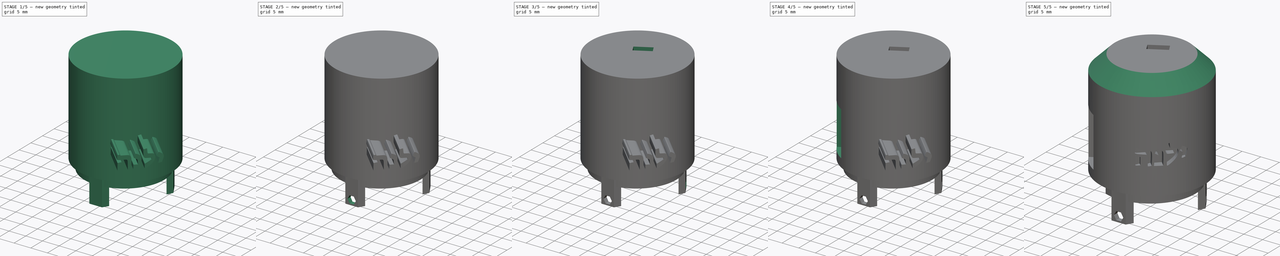
[diagram: build sequence overview — one tinted view per stage of 5, left to right]
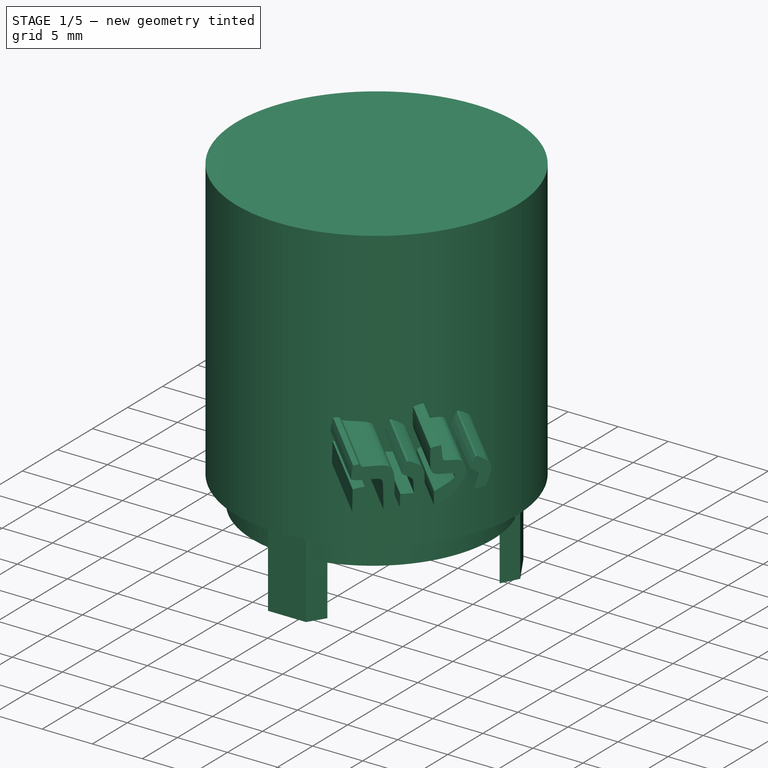
[diagram: stage 1 of 5 — iso view after this stage's code; geometry added in this stage tinted green]
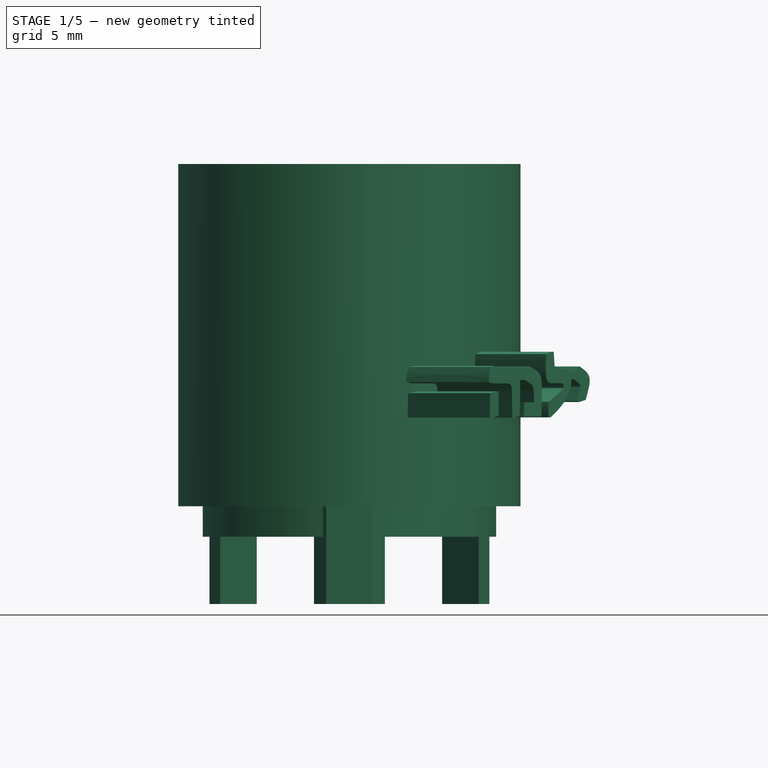
[diagram: stage 1 of 5 — front view after this stage's code; geometry added in this stage tinted green]
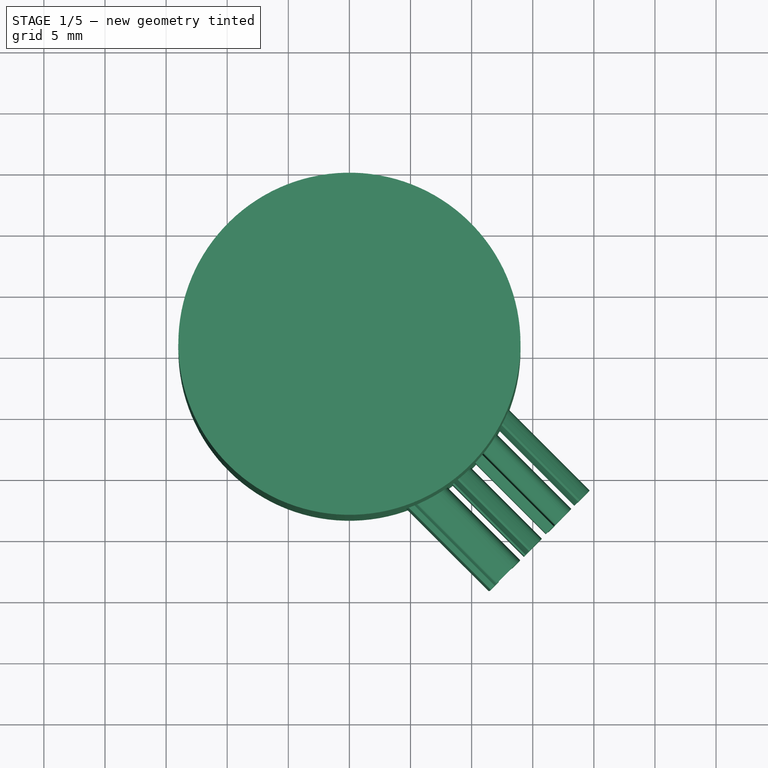
[diagram: stage 1 of 5 — top view after this stage's code; geometry added in this stage tinted green]
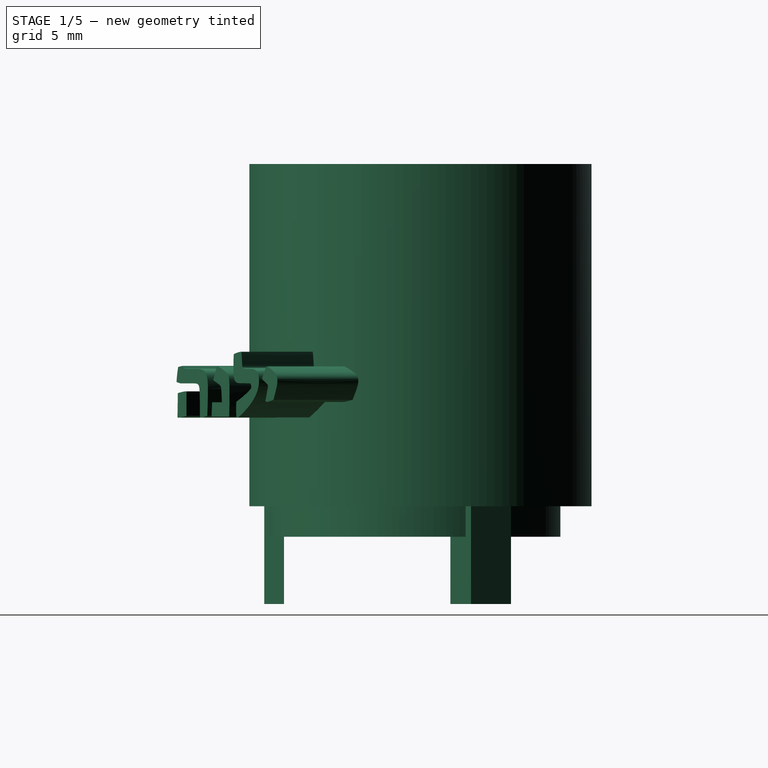
[diagram: stage 1 of 5 — right view after this stage's code; geometry added in this stage tinted green]
FCSTD DOCUMENT  (FreeCAD 0.20R29410 (Git))
Label: lid2PowerBank21700x1
License: All rights reserved
LicenseURL: http://en.wikipedia.org/wiki/All_rights_reserved
objects: Sketcher::SketchObject×20, PartDesign::Pocket×14, PartDesign::Pad×6, Part::Part2DObjectPython×1, PartDesign::Chamfer×1, PartDesign::Body×1, Part::Extrusion×1, Part::Cut×1
note: 66 computed .brp shape members not serialized (recipe doc carries the construction recipe); baked Part::Feature solids carry a one-line shape summary decoded from their .brp

FEATURE [Sketcher::SketchObject] Sketch
  FullyConstrained = true
  MapMode = 5
  Support = -> [XY_Plane]
  sketch-geometry (2):
    g0: Circle CenterX=0 CenterY=0 CenterZ=0 NormalX=0 NormalY=0 NormalZ=1 AngleXU=0 Radius=11
    g1: Circle CenterX=0 CenterY=0.55 CenterZ=0 NormalX=0 NormalY=0 NormalZ=1 AngleXU=0 Radius=14
  constraints (5):
    c: Coincident(g0,g-1)
    c: Radius(g0) = 11
    c: Radius(g1) = 14
    c: DistanceY(g-1,g1) = 0.55
    c: PointOnObject(g1,g-2)
FEATURE [PartDesign::Pad] Pad
  Direction = (0,0,1)
  Length = 25
  Length2 = 10
  Profile = -> Sketch
  ReferenceAxis = -> Sketch [N_Axis]
  Refine = true
  Type = 0
FEATURE [Sketcher::SketchObject] Sketch001
  FullyConstrained = true
  MapMode = 5
  Placement = pos=(0,0,25) rot=(0,0,1;0rad)
  Support = -> [Pad]
  sketch-geometry (1):
    g0: Circle CenterX=0 CenterY=0.55 CenterZ=0 NormalX=0 NormalY=0 NormalZ=1 AngleXU=0 Radius=14
  constraints (3):
    c: PointOnObject(g0,g-2)
    c: Radius(g0) = 14
    c: DistanceY(g-1,g0) = 0.55
FEATURE [Sketcher::SketchObject] Sketch015
  FullyConstrained = true
  MapMode = 5
  Placement = pos=(0,0,-8) rot=(1,0,0;3.14159rad)
  sketch-geometry (2):
    g0: Circle CenterX=0 CenterY=0 CenterZ=0 NormalX=0 NormalY=0 NormalZ=1 AngleXU=0 Radius=11
    g1: Circle CenterX=0 CenterY=0 CenterZ=0 NormalX=0 NormalY=0 NormalZ=1 AngleXU=0 Radius=8.2
  constraints (4):
    c: Coincident(g0,g-1)
    c: Radius(g0) = 11
    c: Coincident(g1,g0)
    c: Radius(g1) = 8.2
FEATURE [Sketcher::SketchObject] Sketch019
  FullyConstrained = true
  MapMode = 5
  Placement = pos=(0,-12.2264,0) rot=(1,0,0;1.5708rad)
  sketch-geometry (7):
    g0: LineSegment StartX=0.625 StartY=-7.58253 StartZ=0 EndX=1.25 EndY=-6.5 EndZ=0
    g1: LineSegment StartX=1.25 StartY=-6.5 StartZ=0 EndX=0.625 EndY=-5.41747 EndZ=0
    g2: LineSegment StartX=0.625 StartY=-5.41747 StartZ=0 EndX=-0.625 EndY=-5.41747 EndZ=0
    g3: LineSegment StartX=-0.625 StartY=-5.41747 StartZ=0 EndX=-1.25 EndY=-6.5 EndZ=0
    g4: LineSegment StartX=-1.25 StartY=-6.5 StartZ=0 EndX=-0.625 EndY=-7.58253 EndZ=0
    g5: LineSegment StartX=-0.625 StartY=-7.58253 StartZ=0 EndX=0.625 EndY=-7.58253 EndZ=0
    g6: Circle CenterX=0 CenterY=-6.5 CenterZ=0 NormalX=0 NormalY=0 NormalZ=1 AngleXU=0 Radius=1.25
  constraints (17):
    c: Coincident(g0,g1)
    c: Coincident(g1,g2)
    c: Coincident(g2,g3)
    c: Coincident(g3,g4)
    c: Coincident(g4,g5)
    c: Coincident(g5,g0)
    c: Equal(g0, g1-g5) x5
    c: PointOnObject(g0,g6)
    c: PointOnObject(g1,g6)
    c: PointOnObject(g2,g6)
    c: PointOnObject(g3,g6)
    c: PointOnObject(g4,g6)
    c: PointOnObject(g5,g6)
    c: PointOnObject(g6,g-2)
    c: Radius(g6) = 1.25
    c: DistanceY(g-1,g6) = -6.5
    c: Parallel(g2,g-1)
FEATURE [Sketcher::SketchObject] Sketch024
  FullyConstrained = true
  MapMode = 5
  Placement = pos=(0,0,-2.5) rot=(1,0,0;3.14159rad)
  sketch-geometry (1):
    g0: Circle CenterX=0 CenterY=-11.3 CenterZ=0 NormalX=0 NormalY=0 NormalZ=1 AngleXU=0 Radius=1
  constraints (3):
    c: PointOnObject(g0,g-2)
    c: Radius(g0) = 1
    c: DistanceY(g-1,g0) = -11.3
FEATURE [PartDesign::Pad] Pad001
  BaseFeature = -> Pad
  Direction = (0,0,1)
  Length = 3
  Length2 = 10
  Profile = -> Sketch001
  ReferenceAxis = -> Sketch001 [N_Axis]
  Refine = true
  Type = 0
FEATURE [Sketcher::SketchObject] Sketch002
  AttachmentOffset = pos=(0,0,-36) rot=(0,0,1;0rad)
  FullyConstrained = true
  MapMode = 5
  Placement = pos=(0,0,-8) rot=(0,0,1;0rad)
  Support = -> [Pad001]
  sketch-geometry (13):
    g0: LineSegment StartX=2.9 StartY=-10.6108 StartZ=0 EndX=1.9 EndY=-12.2264 EndZ=0
    g1: LineSegment StartX=1.9 StartY=-12.2264 StartZ=0 EndX=-1.9 EndY=-12.2264 EndZ=0
    g2: LineSegment StartX=-1.9 StartY=-12.2264 StartZ=0 EndX=-2.9 EndY=-10.6108 EndZ=0
    g3: LineSegment StartX=-2.9 StartY=-10.6108 StartZ=0 EndX=2.9 EndY=-10.6108 EndZ=0
    g4: LineSegment StartX=7.58602 StartY=7.96569 StartZ=0 EndX=9.4859 EndY=7.94433 EndZ=0
    g5: LineSegment StartX=9.4859 StartY=7.94433 StartZ=0 EndX=11.4494 EndY=4.69094 EndZ=0
    g6: LineSegment StartX=11.4494 StartY=4.69094 StartZ=0 EndX=10.583 EndY=3 EndZ=0
    g7: LineSegment StartX=10.583 StartY=3 StartZ=0 EndX=7.58602 EndY=7.96569 EndZ=0
    g8: LineSegment StartX=-9.4859 StartY=7.94433 StartZ=0 EndX=-7.58602 EndY=7.96569 EndZ=0
    g9: LineSegment StartX=-7.58602 StartY=7.96569 StartZ=0 EndX=-10.583 EndY=3 EndZ=0
    g10: LineSegment StartX=-10.583 StartY=3 StartZ=0 EndX=-11.4494 EndY=4.69094 EndZ=0
    g11: LineSegment StartX=-11.4494 StartY=4.69094 StartZ=0 EndX=-9.4859 EndY=7.94433 EndZ=0
    g12: Circle CenterX=0 CenterY=0 CenterZ=0 NormalX=0 NormalY=0 NormalZ=1 AngleXU=0 Radius=11
  constraints (38):
    c: Coincident(g0,g1)
    c: Coincident(g1,g2)
    c: Coincident(g2,g3)
    c: Coincident(g3,g0)
    c: Distance(g0) = 1.9
    c: Distance(g2) = 1.9
    c: Distance(g1) = 3.8
    c: Distance(g3) = 5.8
    c: Coincident(g4,g5)
    c: Coincident(g5,g6)
    c: Coincident(g6,g7)
    c: Distance(g4) = 1.9
    c: Distance(g5) = 3.8
    c: Distance(g6) = 1.9
    c: Coincident(g4,g7)
    c: Parallel(g5,g7)
    c: Distance(g7) = 5.8
    c: Coincident(g8,g9)
    c: Coincident(g9,g10)
    c: Coincident(g10,g11)
    c: Distance(g8) = 1.9
    c: Distance(g9) = 5.8
    c: Distance(g11) = 3.8
    c: Distance(g10) = 1.9
    c: Parallel(g9,g11)
    c: Coincident(g11,g8)
    c: Coincident(g12,g-1)
    c: Radius(g12) = 11
    c: PointOnObject(g4,g12)
    c: PointOnObject(g6,g12)
    c: PointOnObject(g9,g12)
    c: PointOnObject(g8,g12)
    c: PointOnObject(g2,g12)
    c: PointOnObject(g0,g12)
    c: DistanceY(g-1,g6) = 3
    c: DistanceY(g-1,g9) = 3
    c: Parallel(g1,g3)
    c: DistanceX(g-2,g2) = -2.9
FEATURE [PartDesign::Pad] Pad002
  BaseFeature = -> Pad001
  Direction = (0,0,1)
  Length = 11
  Length2 = 10
  Profile = -> Sketch002
  ReferenceAxis = -> Sketch002 [N_Axis]
  Refine = true
  Type = 0
FEATURE [Sketcher::SketchObject] Sketch003
  FullyConstrained = true
  MapMode = 5
  Placement = pos=(0,0,0) rot=(1,0,0;3.14159rad)
  Support = -> [Pad002]
  sketch-geometry (2):
    g0: Circle CenterX=0 CenterY=0 CenterZ=0 NormalX=0 NormalY=0 NormalZ=1 AngleXU=0 Radius=11
    g1: Circle CenterX=0 CenterY=0 CenterZ=0 NormalX=0 NormalY=0 NormalZ=1 AngleXU=0 Radius=12
  constraints (4):
    c: Radius(g0) = 11
    c: Coincident(g0,g-1)
    c: Coincident(g1,g0)
    c: Radius(g1) = 12
FEATURE [PartDesign::Pad] Pad003
  BaseFeature = -> Pad002
  Direction = (0,0,-1)
  Length = 2.5
  Length2 = 10
  Profile = -> Sketch003
  ReferenceAxis = -> Sketch003 [N_Axis]
  Refine = true
  Type = 0
FEATURE [PartDesign::Body] Body
  Group = -> [Sketch,Pad,Sketch001,Pad001,Sketch002,Pad002,Sketch003,Pad003,Sketch015,Pocket008,Sketch019,Pocket011,Sketch020,Pocket012,Sketch024,Pocket016,Sketch025,Pocket,Sketch026,Pocket017,Sketch027,Pad004,Sketch028,Pad005,Sketch029,Pocket018,Sketch030,Pocket019,Sketch031,Pocket021,Sketch033,Pocket022,Sketch034,Pocket023,Sketch035,Pocket024,Sketch036,Pocket025,Sketch037,Pocket026,Chamfer]
  Origin = -> Origin
  Tip = -> Chamfer
FEATURE [Part::Extrusion] Extrude
  Base = -> ShapeString
  Dir = (0.707107,-0.707107,-8e-16)
  DirMode = 2
  FaceMakerClass = Part::FaceMakerBullseye
  LengthFwd = 10
  LengthRev = 0
  Placement = pos=(4.2,6.2,-4) rot=(0,0,1;0rad)
  Solid = false
  Symmetric = false
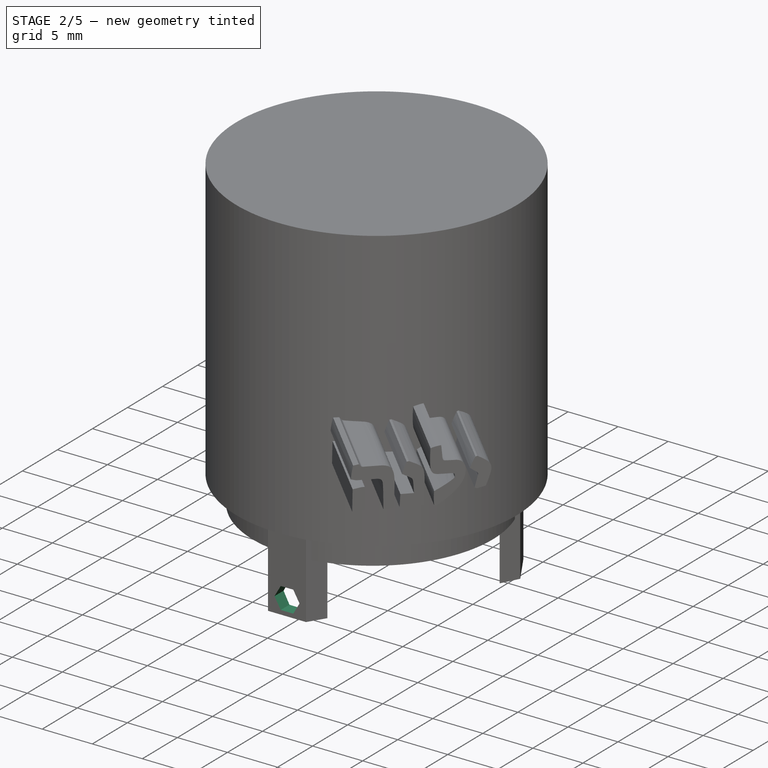
[diagram: stage 2 of 5 — iso view after this stage's code; geometry added in this stage tinted green]
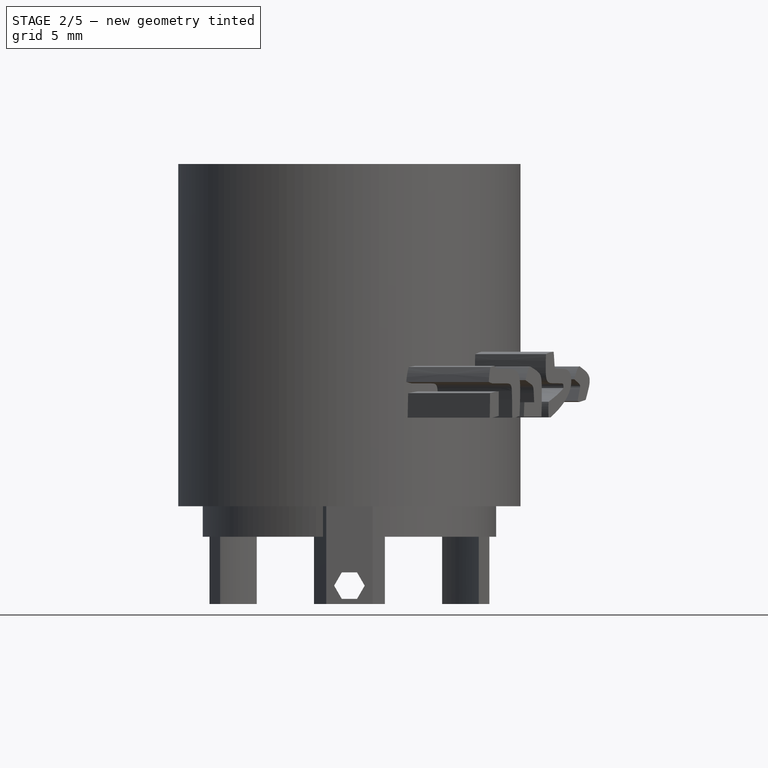
[diagram: stage 2 of 5 — front view after this stage's code; geometry added in this stage tinted green]
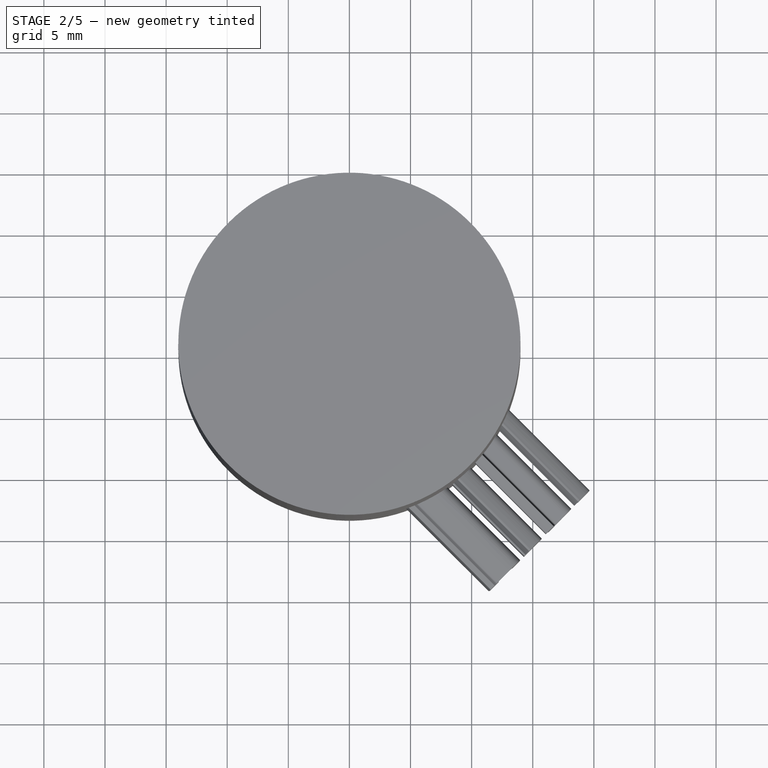
[diagram: stage 2 of 5 — top view after this stage's code; geometry added in this stage tinted green]
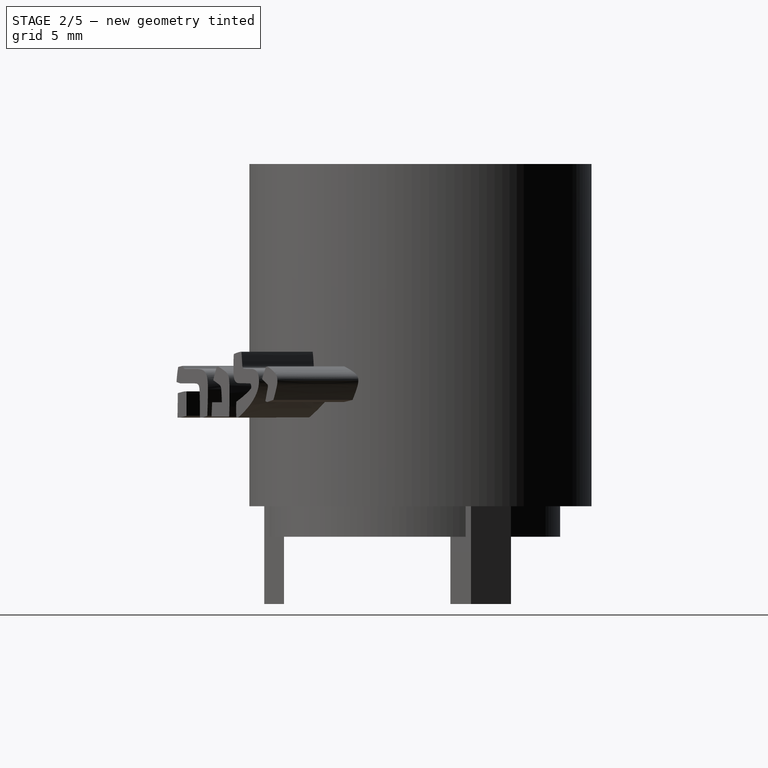
[diagram: stage 2 of 5 — right view after this stage's code; geometry added in this stage tinted green]
FEATURE [PartDesign::Pocket] Pocket008
  BaseFeature = -> Pad003
  Direction = (0,0,1)
  Length = 11
  Length2 = 5
  Profile = -> Sketch015
  ReferenceAxis = -> Sketch015 [N_Axis]
  Refine = true
  Type = 0
FEATURE [PartDesign::Pocket] Pocket011
  BaseFeature = -> Pocket008
  Direction = (0,1,-2e-16)
  Length = 2
  Length2 = 5
  Profile = -> Sketch019
  ReferenceAxis = -> Sketch019 [N_Axis]
  Refine = true
  Type = 0
FEATURE [Sketcher::SketchObject] Sketch020
  FullyConstrained = true
  MapMode = 5
  Placement = pos=(0,0,-2.5) rot=(1,0,0;3.14159rad)
  Support = -> [Pocket011]
  sketch-geometry (7):
    g0: LineSegment StartX=-0.625 StartY=-7.58253 StartZ=0 EndX=0.625 EndY=-7.58253 EndZ=0
    g1: LineSegment StartX=0.625 StartY=-7.58253 StartZ=0 EndX=1.25 EndY=-6.5 EndZ=0
    g2: LineSegment StartX=1.25 StartY=-6.5 StartZ=0 EndX=0.625 EndY=-5.41747 EndZ=0
    g3: LineSegment StartX=0.625 StartY=-5.41747 StartZ=0 EndX=-0.625 EndY=-5.41747 EndZ=0
    g4: LineSegment StartX=-0.625 StartY=-5.41747 StartZ=0 EndX=-1.25 EndY=-6.5 EndZ=0
    g5: LineSegment StartX=-1.25 StartY=-6.5 StartZ=0 EndX=-0.625 EndY=-7.58253 EndZ=0
    g6: Circle CenterX=0 CenterY=-6.5 CenterZ=0 NormalX=0 NormalY=0 NormalZ=1 AngleXU=0 Radius=1.25
  constraints (17):
    c: Coincident(g0,g1)
    c: Coincident(g1,g2)
    c: Coincident(g2,g3)
    c: Coincident(g3,g4)
    c: Coincident(g4,g5)
    c: Coincident(g5,g0)
    c: Equal(g0, g1-g5) x5
    c: PointOnObject(g0,g6)
    c: PointOnObject(g1,g6)
    c: PointOnObject(g2,g6)
    c: PointOnObject(g3,g6)
    c: PointOnObject(g4,g6)
    c: PointOnObject(g5,g6)
    c: PointOnObject(g6,g-2)
    c: Radius(g6) = 1.25
    c: DistanceY(g-1,g6) = -6.5
    c: Parallel(g3,g-1)
FEATURE [PartDesign::Pocket] Pocket012
  BaseFeature = -> Pocket011
  Direction = (0,0,1)
  Length = 3
  Length2 = 5
  Profile = -> Sketch020
  ReferenceAxis = -> Sketch020 [N_Axis]
  Refine = true
  Type = 0
FEATURE [PartDesign::Pocket] Pocket016
  BaseFeature = -> Pocket012
  Direction = (0,0,1)
  Length = 4
  Length2 = 5
  Profile = -> Sketch024
  ReferenceAxis = -> Sketch024 [N_Axis]
  Refine = true
  Type = 0
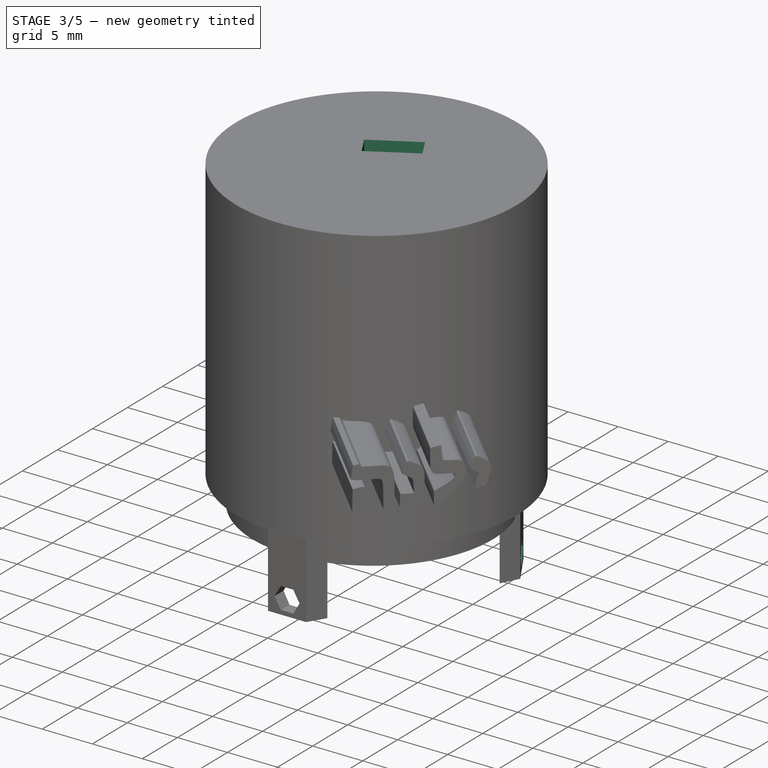
[diagram: stage 3 of 5 — iso view after this stage's code; geometry added in this stage tinted green]
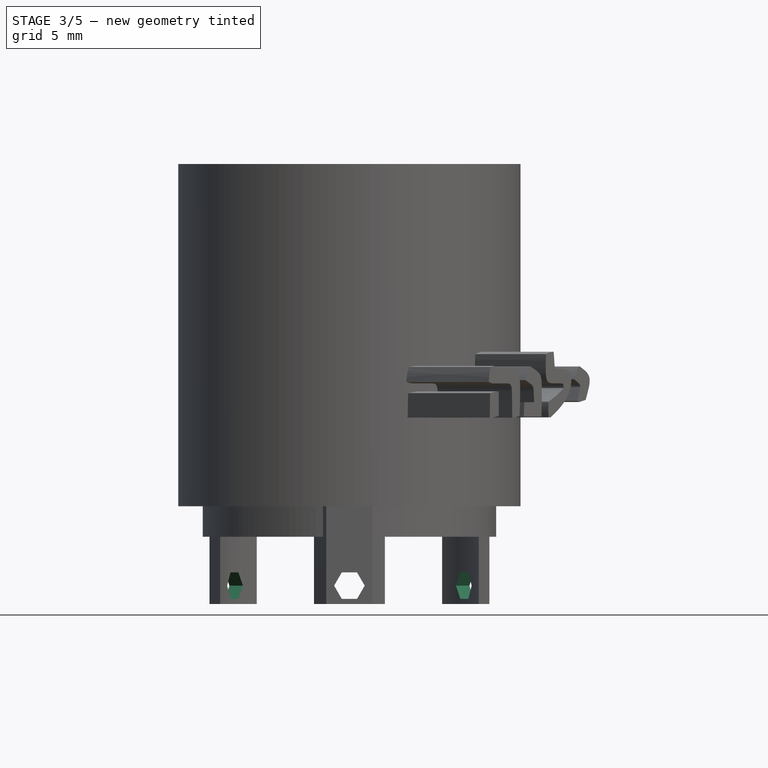
[diagram: stage 3 of 5 — front view after this stage's code; geometry added in this stage tinted green]
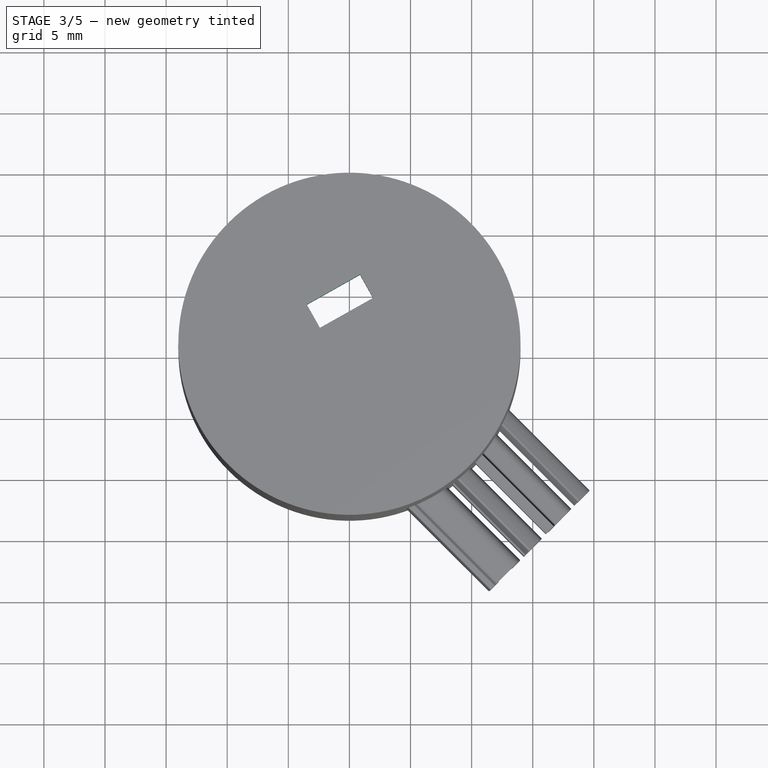
[diagram: stage 3 of 5 — top view after this stage's code; geometry added in this stage tinted green]
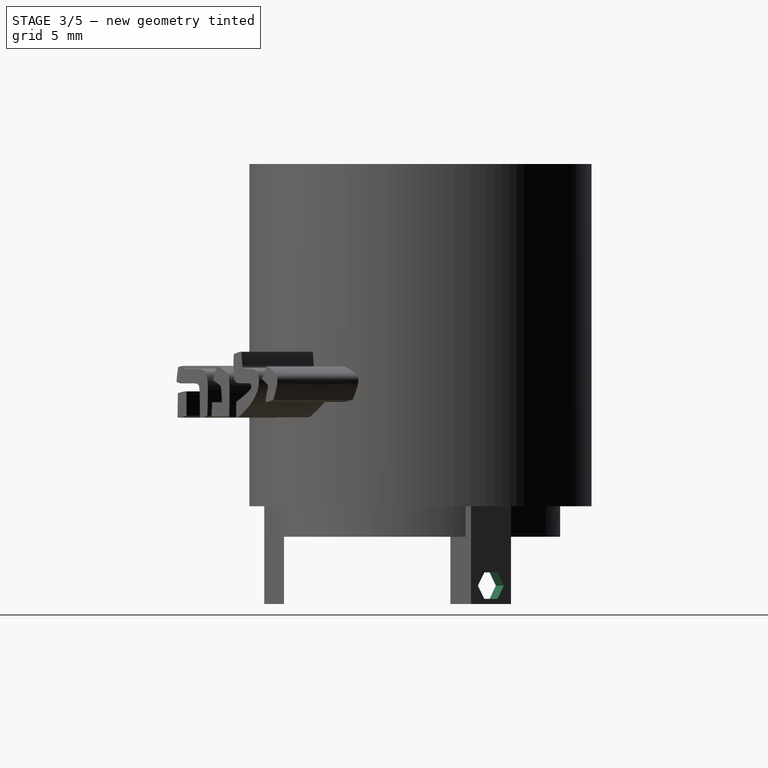
[diagram: stage 3 of 5 — right view after this stage's code; geometry added in this stage tinted green]
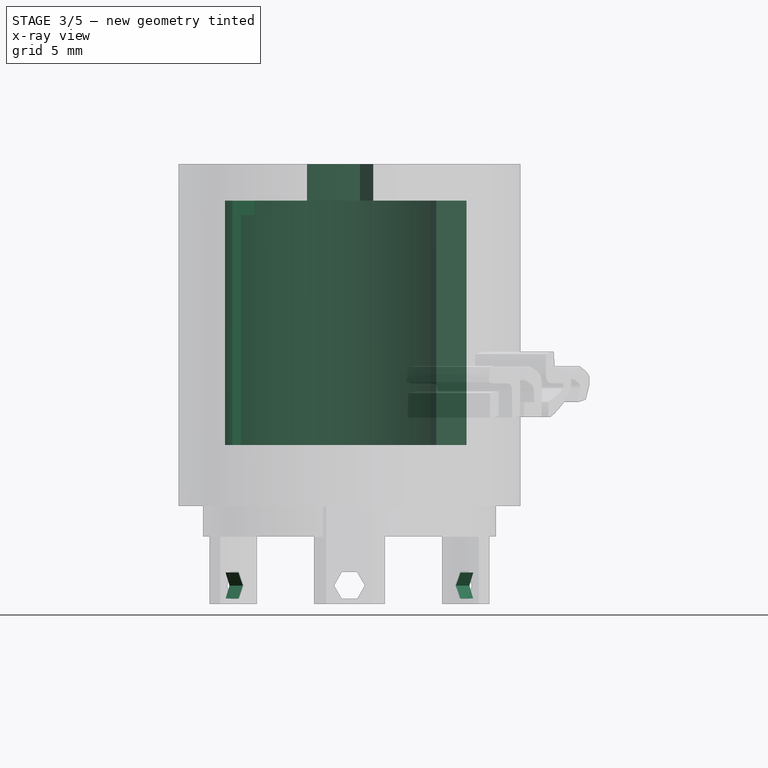
[diagram: stage 3 of 5 — x-ray composite at the front view; earlier geometry ghosted, this stage's added geometry solid]
FEATURE [Sketcher::SketchObject] Sketch025
  FullyConstrained = true
  MapMode = 5
  Placement = pos=(10.4677,6.31763,0) rot=(0.370706,0.656726,0.656726;2.43159rad)
  Support = -> [Pocket016]
  sketch-geometry (7):
    g0: LineSegment StartX=0.625 StartY=-7.58253 StartZ=0 EndX=1.25 EndY=-6.5 EndZ=0
    g1: LineSegment StartX=1.25 StartY=-6.5 StartZ=0 EndX=0.625 EndY=-5.41747 EndZ=0
    g2: LineSegment StartX=0.625 StartY=-5.41747 StartZ=0 EndX=-0.625 EndY=-5.41747 EndZ=0
    g3: LineSegment StartX=-0.625 StartY=-5.41747 StartZ=0 EndX=-1.25 EndY=-6.5 EndZ=0
    g4: LineSegment StartX=-1.25 StartY=-6.5 StartZ=0 EndX=-0.625 EndY=-7.58253 EndZ=0
    g5: LineSegment StartX=-0.625 StartY=-7.58253 StartZ=0 EndX=0.625 EndY=-7.58253 EndZ=0
    g6: Circle CenterX=0 CenterY=-6.5 CenterZ=0 NormalX=0 NormalY=0 NormalZ=1 AngleXU=0 Radius=1.25
  constraints (17):
    c: Coincident(g0,g1)
    c: Coincident(g1,g2)
    c: Coincident(g2,g3)
    c: Coincident(g3,g4)
    c: Coincident(g4,g5)
    c: Coincident(g5,g0)
    c: Equal(g0, g1-g5) x5
    c: PointOnObject(g0,g6)
    c: PointOnObject(g1,g6)
    c: PointOnObject(g2,g6)
    c: PointOnObject(g3,g6)
    c: PointOnObject(g4,g6)
    c: PointOnObject(g5,g6)
    c: Radius(g6) = 1.25
    c: PointOnObject(g6,g-2)
    c: DistanceY(g-1,g6) = -6.5
    c: Parallel(g2,g-1)
FEATURE [PartDesign::Pocket] Pocket
  BaseFeature = -> Pocket016
  Direction = (-0.856154,-0.516721,2e-16)
  Length = 1.5
  Length2 = 5
  Profile = -> Sketch025
  ReferenceAxis = -> Sketch025 [N_Axis]
  Refine = true
  Type = 0
FEATURE [Sketcher::SketchObject] Sketch026
  FullyConstrained = true
  MapMode = 5
  Placement = pos=(-10.4677,6.31763,0) rot=(-0.370706,0.656726,0.656726;3.8516rad)
  Support = -> [Pocket]
  sketch-geometry (7):
    g0: LineSegment StartX=1.25 StartY=-6.5 StartZ=0 EndX=0.625 EndY=-5.41747 EndZ=0
    g1: LineSegment StartX=0.625 StartY=-5.41747 StartZ=0 EndX=-0.625 EndY=-5.41747 EndZ=0
    g2: LineSegment StartX=-0.625 StartY=-5.41747 StartZ=0 EndX=-1.25 EndY=-6.5 EndZ=0
    g3: LineSegment StartX=-1.25 StartY=-6.5 StartZ=0 EndX=-0.625 EndY=-7.58253 EndZ=0
    g4: LineSegment StartX=-0.625 StartY=-7.58253 StartZ=0 EndX=0.625 EndY=-7.58253 EndZ=0
    g5: LineSegment StartX=0.625 StartY=-7.58253 StartZ=0 EndX=1.25 EndY=-6.5 EndZ=0
    g6: Circle CenterX=0 CenterY=-6.5 CenterZ=0 NormalX=0 NormalY=0 NormalZ=1 AngleXU=0 Radius=1.25
  constraints (17):
    c: Coincident(g0,g1)
    c: Coincident(g1,g2)
    c: Coincident(g2,g3)
    c: Coincident(g3,g4)
    c: Coincident(g4,g5)
    c: Coincident(g5,g0)
    c: Equal(g0, g1-g5) x5
    c: PointOnObject(g0,g6)
    c: PointOnObject(g1,g6)
    c: PointOnObject(g2,g6)
    c: PointOnObject(g3,g6)
    c: PointOnObject(g4,g6)
    c: PointOnObject(g5,g6)
    c: Radius(g6) = 1.25
    c: PointOnObject(g6,g-2)
    c: Parallel(g1,g-1)
    c: DistanceY(g-1,g6) = -6.5
FEATURE [PartDesign::Pocket] Pocket017
  BaseFeature = -> Pocket
  Direction = (0.856154,-0.516721,2e-16)
  Length = 1.5
  Length2 = 5
  Profile = -> Sketch026
  ReferenceAxis = -> Sketch026 [N_Axis]
  Refine = true
  Type = 0
FEATURE [Sketcher::SketchObject] Sketch027
  FullyConstrained = false
  MapMode = 5
  Placement = pos=(0,0,25) rot=(1,0,0;3.14159rad)
  Support = -> [Pocket017]
  sketch-geometry (7):
    g0: ArcOfCircle CenterX=0 CenterY=0 CenterZ=0 NormalX=0 NormalY=0 NormalZ=1 AngleXU=0 Radius=11 StartAngle=2.62928 EndAngle=5.77087
    g1: ArcOfCircle CenterX=0 CenterY=0 CenterZ=0 NormalX=0 NormalY=0 NormalZ=1 AngleXU=0 Radius=10.2 StartAngle=2.62928 EndAngle=5.67267
    g2: LineSegment StartX=7.10439 StartY=-3.99552 StartZ=0 EndX=8.89044 EndY=-5 EndZ=0
    g3: LineSegment StartX=7.10439 StartY=-3.99552 StartZ=0 EndX=6.61419 EndY=-4.86713 EndZ=0
    g4: LineSegment StartX=6.61419 StartY=-4.86713 StartZ=0 EndX=8.35742 EndY=-5.84752 EndZ=0
    g5: LineSegment StartX=8.89044 StartY=-5 StartZ=0 EndX=9.58773 EndY=-5.39216 EndZ=0
    g6: LineSegment StartX=-8.89044 StartY=5 StartZ=0 EndX=-9.58773 EndY=5.39216 EndZ=0
  constraints (18):
    c: Coincident(g0,g-1)
    c: Radius(g0) = 11
    c: Coincident(g1,g0)
    c: Radius(g1) = 10.2
    c: PointOnObject(g0,g2)
    c: Coincident(g4,g3)
    c: Coincident(g5,g2)
    c: Parallel(g6,g2)
    c: Parallel(g5,g2)
    c: Parallel(g4,g2)
    c: Distance(g3,g2) = 1
    c: DistanceY(g-1,g6) = 5
    c: Distance(g3,g4) = 2
    c: Perpendicular(g2,g3) = 4.71239
    c: Coincident(g1,g6)
    c: Coincident(g0,g5)
    c: Coincident(g0,g6)
    c: Coincident(g1,g4)
FEATURE [PartDesign::Pad] Pad004
  BaseFeature = -> Pocket017
  Direction = (0,0,-1)
  Length = 20
  Length2 = 10
  Profile = -> Sketch027
  ReferenceAxis = -> Sketch027 [N_Axis]
  Refine = true
  Type = 0
FEATURE [Sketcher::SketchObject] Sketch028
  FullyConstrained = false
  MapMode = 5
  Placement = pos=(0,0,25) rot=(1,0,0;3.14159rad)
  Support = -> [Pad004]
  sketch-geometry (5):
    g0: ArcOfCircle CenterX=0 CenterY=0 CenterZ=0 NormalX=0 NormalY=0 NormalZ=1 AngleXU=0 Radius=11 StartAngle=2.6336 EndAngle=2.72463
    g1: LineSegment StartX=-9.03079 StartY=4 StartZ=0 EndX=-5.90147 EndY=2.61393 EndZ=0
    g2: LineSegment StartX=-10.0576 StartY=4.45479 StartZ=0 EndX=-9.03079 EndY=4 EndZ=0
    g3: LineSegment StartX=-9.61095 StartY=5.35067 StartZ=0 EndX=-5.49648 EndY=3.52826 EndZ=0
    g4: LineSegment StartX=-5.90147 StartY=2.61393 StartZ=0 EndX=-5.49648 EndY=3.52826 EndZ=0
  constraints (12):
    c: Coincident(g0,g-1)
    c: Radius(g0) = 11
    c: PointOnObject(g0,g1)
    c: DistanceY(g-1,g1) = 4
    c: Coincident(g2,g1)
    c: Parallel(g2,g1)
    c: Coincident(g4,g3)
    c: Distance(g4) = 1
    c: Distance(g3) = 4.5
    c: Parallel(g3,g1)
    c: Coincident(g0,g2)
    c: Coincident(g0,g3)
FEATURE [PartDesign::Pad] Pad005
  BaseFeature = -> Pad004
  Direction = (0,0,-1)
  Length = 1.2
  Length2 = 10
  Profile = -> Sketch028
  ReferenceAxis = -> Sketch028 [N_Axis]
  Refine = true
  Type = 0
FEATURE [Sketcher::SketchObject] Sketch029
  FullyConstrained = true
  MapMode = 5
  Placement = pos=(0,0,25) rot=(1,0,0;3.14159rad)
  Support = -> [Pad005]
  sketch-geometry (7):
    g0: Circle CenterX=0 CenterY=0 CenterZ=0 NormalX=0 NormalY=0 NormalZ=1 AngleXU=0 Radius=10.2
    g1: LineSegment StartX=-8.89044 StartY=5 StartZ=0 EndX=8.89044 EndY=-5 EndZ=0
    g2: LineSegment StartX=7.17636 StartY=-7.24844 StartZ=0 EndX=-9.92146 EndY=2.36741 EndZ=0
    g3: LineSegment StartX=1.94669 StartY=-4.30726 StartZ=0 EndX=0.868258 EndY=-6.22481 EndZ=0
    g4: LineSegment StartX=-2.41137 StartY=-1.85628 StartZ=0 EndX=-3.4898 EndY=-3.77383 EndZ=0
    g5: LineSegment StartX=-3.4898 StartY=-3.77383 StartZ=0 EndX=0.868258 EndY=-6.22481 EndZ=0
    g6: LineSegment StartX=-2.41137 StartY=-1.85628 StartZ=0 EndX=1.94669 EndY=-4.30726 EndZ=0
  constraints (22):
    c: Coincident(g0,g-1)
    c: Radius(g0) = 10.2
    c: PointOnObject(g1,g0)
    c: PointOnObject(g1,g0)
    c: PointOnObject(g0,g1)
    c: DistanceY(g-1,g1) = 5
    c: PointOnObject(g2,g0)
    c: PointOnObject(g2,g0)
    c: Parallel(g2,g1)
    c: Distance(g2,g1) = 2.8
    c: PointOnObject(g3,g2)
    c: Distance(g3,g2) = 6
    c: PointOnObject(g4,g2)
    c: Distance(g4,g3) = 5
    c: Perpendicular(g2,g4)
    c: Distance(g4,g2) = 2.2
    c: Coincident(g5,g4)
    c: Coincident(g5,g3)
    c: Parallel(g5,g2)
    c: Perpendicular(g2,g3)
    c: Coincident(g6,g4)
    c: Coincident(g6,g3)
FEATURE [PartDesign::Pocket] Pocket018
  BaseFeature = -> Pad005
  Direction = (0,0,1)
  Length = 3
  Length2 = 5
  Profile = -> Sketch029
  ReferenceAxis = -> Sketch029 [N_Axis]
  Refine = true
  Type = 0
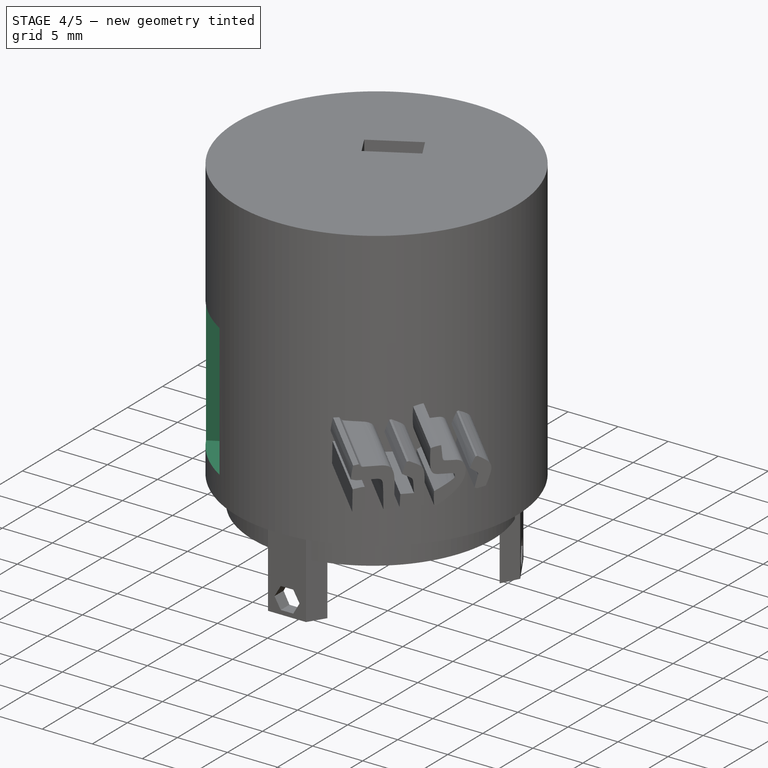
[diagram: stage 4 of 5 — iso view after this stage's code; geometry added in this stage tinted green]
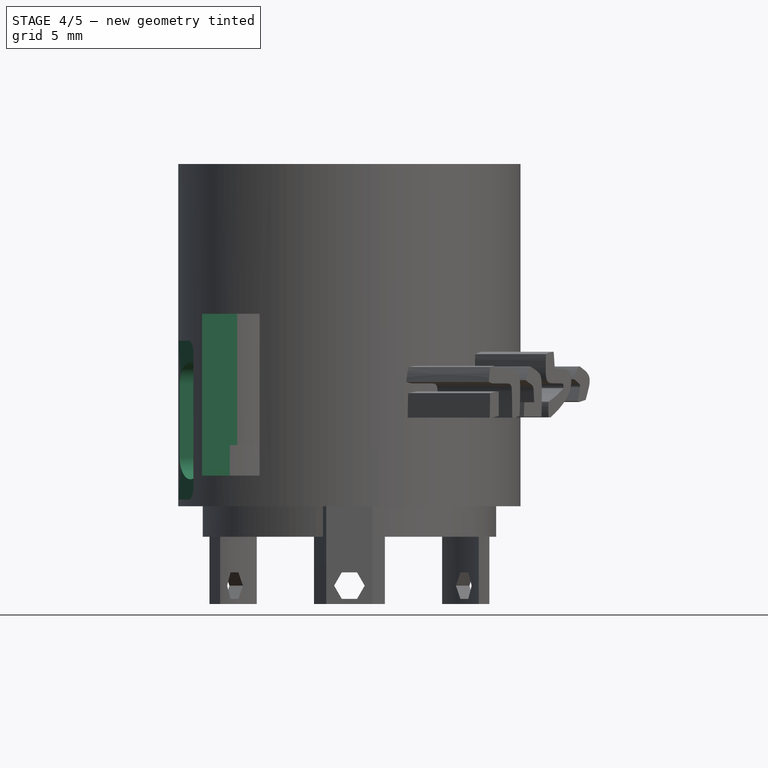
[diagram: stage 4 of 5 — front view after this stage's code; geometry added in this stage tinted green]
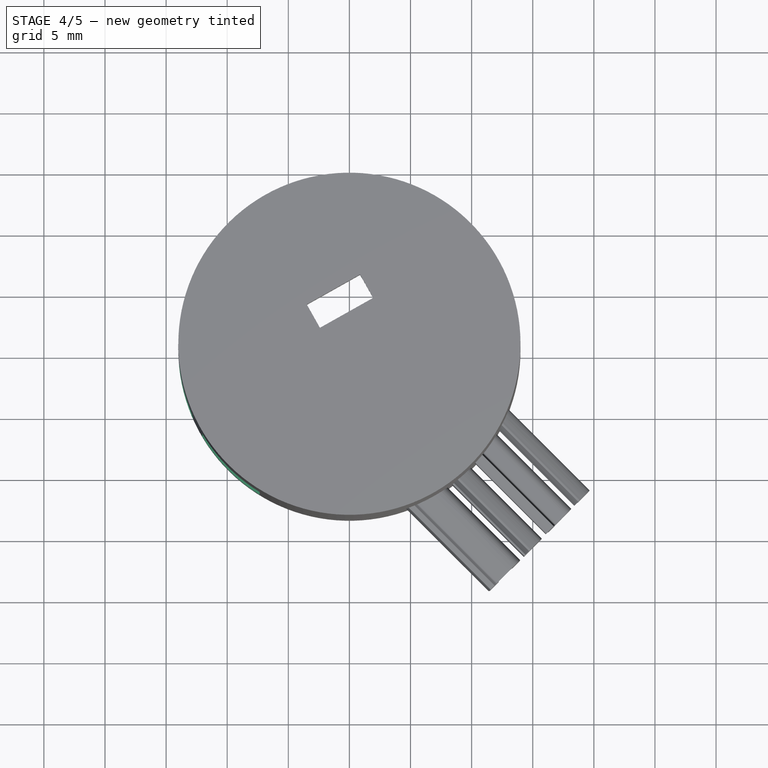
[diagram: stage 4 of 5 — top view after this stage's code; geometry added in this stage tinted green]
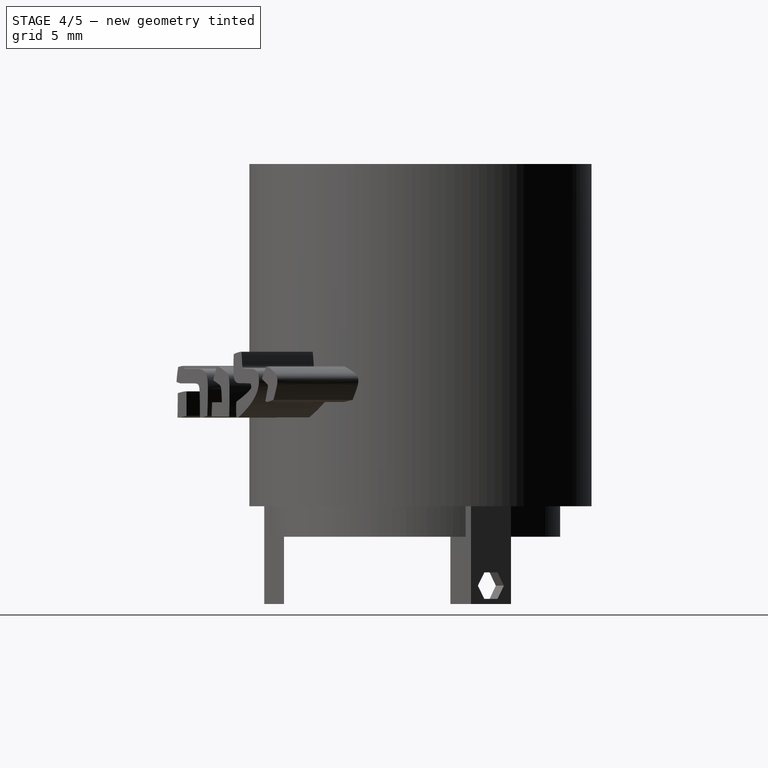
[diagram: stage 4 of 5 — right view after this stage's code; geometry added in this stage tinted green]
FEATURE [Sketcher::SketchObject] Sketch030
  FullyConstrained = true
  MapMode = 5
  Placement = pos=(0,0,25) rot=(1,0,0;3.14159rad)
  Support = -> [Pocket018]
  sketch-geometry (13):
    g0: Circle CenterX=0 CenterY=0 CenterZ=0 NormalX=0 NormalY=0 NormalZ=1 AngleXU=0 Radius=10.2
    g1: LineSegment StartX=-8.89044 StartY=5 StartZ=0 EndX=8.89044 EndY=-5 EndZ=0
    g2: LineSegment StartX=-9.91503 StartY=2.39419 StartZ=0 EndX=7.19591 EndY=-7.22903 EndZ=0
    g3: LineSegment StartX=0.977131 StartY=-6.02617 StartZ=0 EndX=1.95752 EndY=-4.28295 EndZ=0
    g4: LineSegment StartX=0.977131 StartY=-6.02617 StartZ=0 EndX=5.16087 EndY=-8.37911 EndZ=0
    g5: LineSegment StartX=5.16087 StartY=-8.37911 StartZ=0 EndX=6.14126 EndY=-6.63589 EndZ=0
    g6: LineSegment StartX=6.14126 StartY=-6.63589 StartZ=0 EndX=1.95752 EndY=-4.28295 EndZ=0
    g7: LineSegment StartX=-3.33735 StartY=-3.5997 StartZ=0 EndX=-2.35696 EndY=-1.85648 EndZ=0
    g8: LineSegment StartX=-3.33735 StartY=-3.5997 StartZ=0 EndX=-5.2549 EndY=-2.52127 EndZ=0
    g9: LineSegment StartX=-5.2549 StartY=-2.52127 StartZ=0 EndX=-4.2745 EndY=-0.778047 EndZ=0
    g10: LineSegment StartX=-4.2745 StartY=-0.778047 StartZ=0 EndX=-2.35696 EndY=-1.85648 EndZ=0
    g11: LineSegment StartX=-3.33735 StartY=-3.5997 StartZ=0 EndX=-2.35696 EndY=-1.85648 EndZ=0
    g12: LineSegment StartX=0.977131 StartY=-6.02617 StartZ=0 EndX=1.95752 EndY=-4.28295 EndZ=0
  constraints (40):
    c: Coincident(g0,g-1)
    c: Radius(g0) = 10.2
    c: PointOnObject(g1,g0)
    c: PointOnObject(g1,g0)
    c: PointOnObject(g0,g1)
    c: DistanceY(g-1,g1) = 5
    c: PointOnObject(g2,g0)
    c: PointOnObject(g2,g0)
    c: Distance(g1,g2) = 2.8
    c: Distance(g2,g1) = 2.8
    c: PointOnObject(g3,g2)
    c: Distance(g3,g2) = 6.01
    c: Perpendicular(g2,g3)
    c: Coincident(g4,g3)
    c: Coincident(g5,g4)
    c: Coincident(g6,g5)
    c: PointOnObject(g6,g3)
    c: Parallel(g4,g6)
    c: Parallel(g6,g2)
    c: Perpendicular(g6,g5)
    c: Distance(g5) = 2
    c: Distance(g6) = 4.8
    c: PointOnObject(g7,g2)
    c: Distance(g7,g3) = 4.95
    c: Perpendicular(g7,g2)
    c: Coincident(g8,g7)
    c: Coincident(g9,g8)
    c: PointOnObject(g10,g7)
    c: Coincident(g10,g9)
    c: Parallel(g10,g2)
    c: Parallel(g8,g10)
    c: Perpendicular(g10,g9)
    c: Distance(g9) = 2
    c: Distance(g10) = 2.2
    c: Coincident(g11,g8)
    c: Coincident(g11,g10)
    c: Coincident(g12,g4)
    c: Coincident(g12,g6)
    c: PointOnObject(g6,g2)
    c: PointOnObject(g10,g2)
FEATURE [PartDesign::Pocket] Pocket019
  BaseFeature = -> Pocket018
  Direction = (0,0,1)
  Length = 1.8
  Length2 = 5
  Profile = -> Sketch030
  ReferenceAxis = -> Sketch030 [N_Axis]
  Refine = true
  Type = 0
FEATURE [Sketcher::SketchObject] Sketch031
  AttachmentOffset = pos=(-1.5,0,-6) rot=(0,1,0;0.506145rad)
  FullyConstrained = false
  MapMode = 5
  Placement = pos=(-6,-1.5,-1e-15) rot=(0.384498,0.652748,0.652748;2.40745rad)
  Support = -> [YZ_Plane]
  sketch-geometry (8):
    g0: LineSegment StartX=-7.98257 StartY=15.75 StartZ=0 EndX=-1.48257 EndY=15.75 EndZ=0
    g1: LineSegment StartX=-1.48257 StartY=15.75 StartZ=0 EndX=-1.48257 EndY=2.5 EndZ=0
    g2: LineSegment StartX=-1.48257 StartY=2.5 StartZ=0 EndX=-7.98257 EndY=2.5 EndZ=0
    g3: LineSegment StartX=-7.98257 StartY=2.5 StartZ=0 EndX=-7.98257 EndY=15.75 EndZ=0
    g4: ArcOfCircle CenterX=3.16743 CenterY=10 CenterZ=0 NormalX=0 NormalY=0 NormalZ=1 AngleXU=0 Radius=1.8 StartAngle=1.15904e-11 EndAngle=3.14159
    g5: ArcOfCircle CenterX=3.16743 CenterY=4 CenterZ=0 NormalX=0 NormalY=0 NormalZ=1 AngleXU=0 Radius=1.8 StartAngle=3.14159 EndAngle=6.28319
    g6: LineSegment StartX=1.36743 StartY=10 StartZ=0 EndX=1.36743 EndY=4 EndZ=0
    g7: LineSegment StartX=4.96743 StartY=4 StartZ=0 EndX=4.96743 EndY=10 EndZ=0
  constraints (21):
    c: Coincident(g0,g1)
    c: Coincident(g1,g2)
    c: Coincident(g2,g3)
    c: Coincident(g3,g0)
    c: Horizontal(g0)
    c: Horizontal(g2)
    c: Vertical(g1)
    c: Vertical(g3)
    c: Distance(g0) = 6.5
    c: Distance(g1) = 13.25
    c: Tangent(g4,g6) = -1.5708
    c: Tangent(g6,g5) = -1.5708
    c: Tangent(g5,g7) = -1.5708
    c: Tangent(g7,g4) = -1.5708
    c: Equal(g4,g5)
    c: Vertical(g6)
    c: Radius(g4) = 1.8
    c: Distance(g7) = 6
    c: Distance(g4,g1) = 2.85
    c: DistanceY(g-1,g2) = 2.5
    c: DistanceY(g-1,g5) = 4
FEATURE [Sketcher::SketchObject] Sketch033
  AttachmentOffset = pos=(-2.5,0,-8) rot=(0,1,0;0.558505rad)
  FullyConstrained = true
  MapMode = 5
  Placement = pos=(-8,-2.5,-1.2e-15) rot=(0.364925,0.658342,0.658342;2.44177rad)
  Support = -> [YZ_Plane]
  sketch-geometry (4):
    g0: LineSegment StartX=-8.5 StartY=16.25 StartZ=0 EndX=-1 EndY=16.25 EndZ=0
    g1: LineSegment StartX=-1 StartY=16.25 StartZ=0 EndX=-1 EndY=2 EndZ=0
    g2: LineSegment StartX=-1 StartY=2 StartZ=0 EndX=-8.5 EndY=2 EndZ=0
    g3: LineSegment StartX=-8.5 StartY=2 StartZ=0 EndX=-8.5 EndY=16.25 EndZ=0
  constraints (12):
    c: Coincident(g0,g1)
    c: Coincident(g1,g2)
    c: Coincident(g2,g3)
    c: Coincident(g3,g0)
    c: Horizontal(g0)
    c: Horizontal(g2)
    c: Vertical(g1)
    c: Vertical(g3)
    c: Distance(g0) = 7.5
    c: Distance(g1) = 14.25
    c: DistanceY(g-1,g2) = 2
    c: DistanceX(g-2,g1) = -1
FEATURE [Sketcher::SketchObject] Sketch034
  AttachmentOffset = pos=(-4.5,0,-11.5) rot=(0,1,0;0.506145rad)
  FullyConstrained = false
  MapMode = 5
  Placement = pos=(-11.5,-4.5,-1.6e-15) rot=(0.384498,0.652748,0.652748;2.40745rad)
  Support = -> [YZ_Plane]
  sketch-geometry (10):
    g0: ArcOfCircle CenterX=1 CenterY=12.5487 CenterZ=0 NormalX=0 NormalY=0 NormalZ=1 AngleXU=0 Radius=1 StartAngle=1.5708 EndAngle=3.14159
    g1: LineSegment StartX=1 StartY=13.5487 StartZ=0 EndX=5 EndY=13.5487 EndZ=0
    g2: ArcOfCircle CenterX=5 CenterY=12.5487 CenterZ=0 NormalX=0 NormalY=0 NormalZ=1 AngleXU=0 Radius=1 StartAngle=-9e-16 EndAngle=1.5708
    g3: LineSegment StartX=6 StartY=12.5487 StartZ=0 EndX=6 EndY=1.54865 EndZ=0
    g4: ArcOfCircle CenterX=5 CenterY=1.54865 CenterZ=0 NormalX=0 NormalY=0 NormalZ=1 AngleXU=0 Radius=1 StartAngle=4.71239 EndAngle=6.28319
    g5: LineSegment StartX=5 StartY=0.548653 StartZ=0 EndX=1 EndY=0.548653 EndZ=0
    g6: ArcOfCircle CenterX=1 CenterY=1.54865 CenterZ=0 NormalX=0 NormalY=0 NormalZ=1 AngleXU=0 Radius=1 StartAngle=3.14159 EndAngle=4.71239
    g7: LineSegment StartX=0 StartY=1.54865 StartZ=0 EndX=0 EndY=12.5487 EndZ=0
    g8: GeomPoint X=0 Y=13.5487 Z=0
    g9: GeomPoint X=6 Y=0.548653 Z=0
  constraints (23):
    c: Tangent(g0,g1) = 1.5708
    c: Tangent(g1,g2) = 1.5708
    c: Tangent(g2,g3) = 1.5708
    c: Tangent(g3,g4) = 1.5708
    c: Tangent(g4,g5) = 1.5708
    c: Tangent(g5,g6) = 1.5708
    c: Tangent(g6,g7) = 1.5708
    c: Tangent(g7,g0) = 1.5708
    c: Horizontal(g1)
    c: Horizontal(g5)
    c: Vertical(g3)
    c: Vertical(g7)
    c: Equal(g0,g2)
    c: Equal(g2,g4)
    c: Equal(g4,g6)
    c: PointOnObject(g8,g1)
    c: PointOnObject(g8,g7)
    c: PointOnObject(g9,g3)
    c: PointOnObject(g9,g5)
    c: Distance(g3) = 11
    c: Distance(g1) = 4
    c: Radius(g2) = 1
    c: PointOnObject(g0,g-2)
FEATURE [PartDesign::Pocket] Pocket021
  BaseFeature = -> Pocket019
  Direction = (-0.87462,-0.48481,-2e-16)
  Length = 9
  Length2 = 5
  Profile = -> Sketch031
  ReferenceAxis = -> Sketch031 [N_Axis]
  Refine = true
  Type = 0
FEATURE [PartDesign::Pocket] Pocket022
  BaseFeature = -> Pocket021
  Direction = (-0.848048,-0.529919,0)
  Length = 3
  Length2 = 5
  Profile = -> Sketch033
  ReferenceAxis = -> Sketch033 [N_Axis]
  Refine = true
  Type = 0
FEATURE [PartDesign::Pocket] Pocket023
  BaseFeature = -> Pocket022
  Direction = (-0.87462,-0.48481,-2e-16)
  Length = 5
  Length2 = 5
  Profile = -> Sketch034
  ReferenceAxis = -> Sketch034 [N_Axis]
  Refine = true
  Type = 0
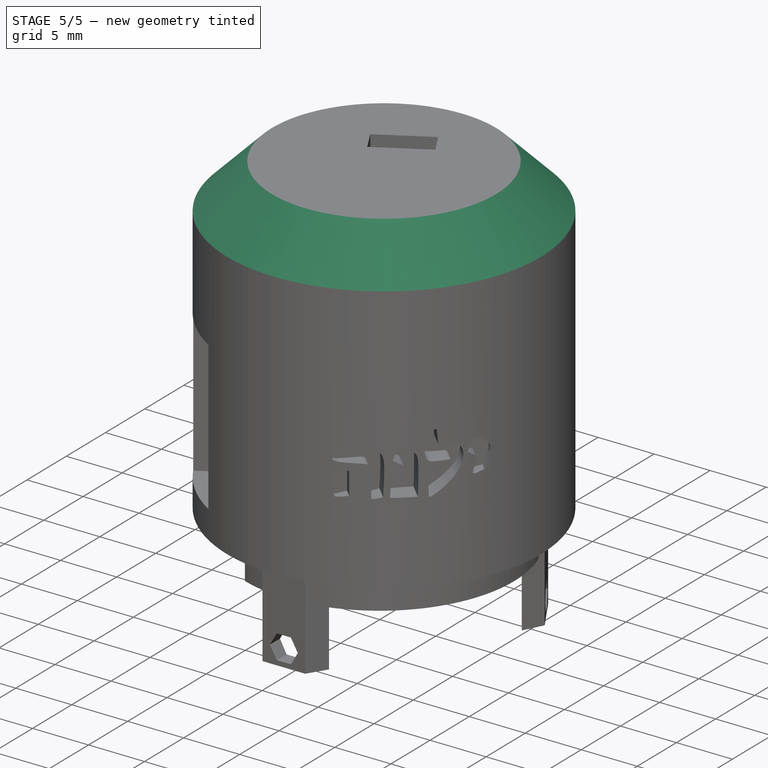
[diagram: stage 5 of 5 — iso view after this stage's code; geometry added in this stage tinted green]
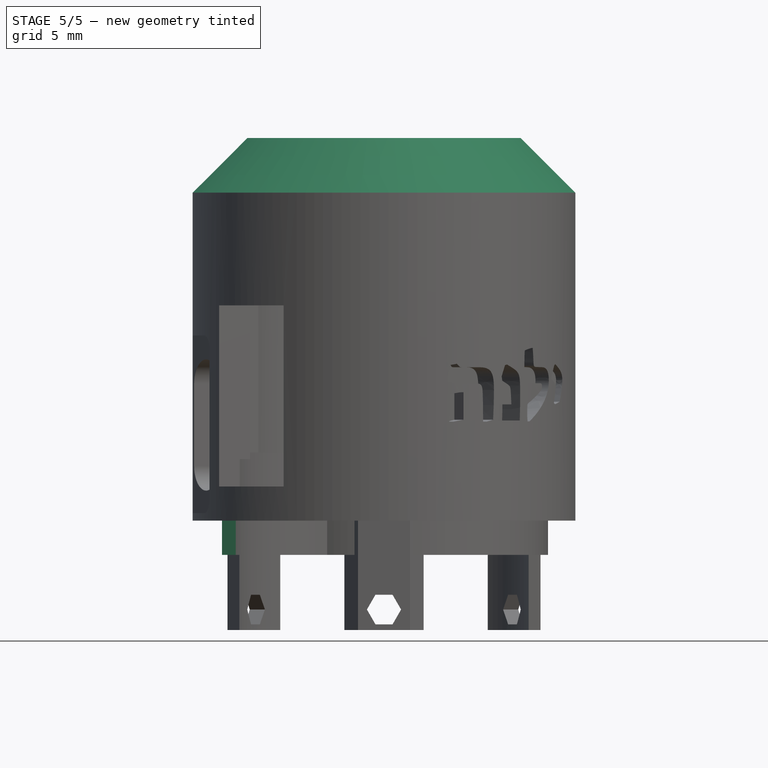
[diagram: stage 5 of 5 — front view after this stage's code; geometry added in this stage tinted green]
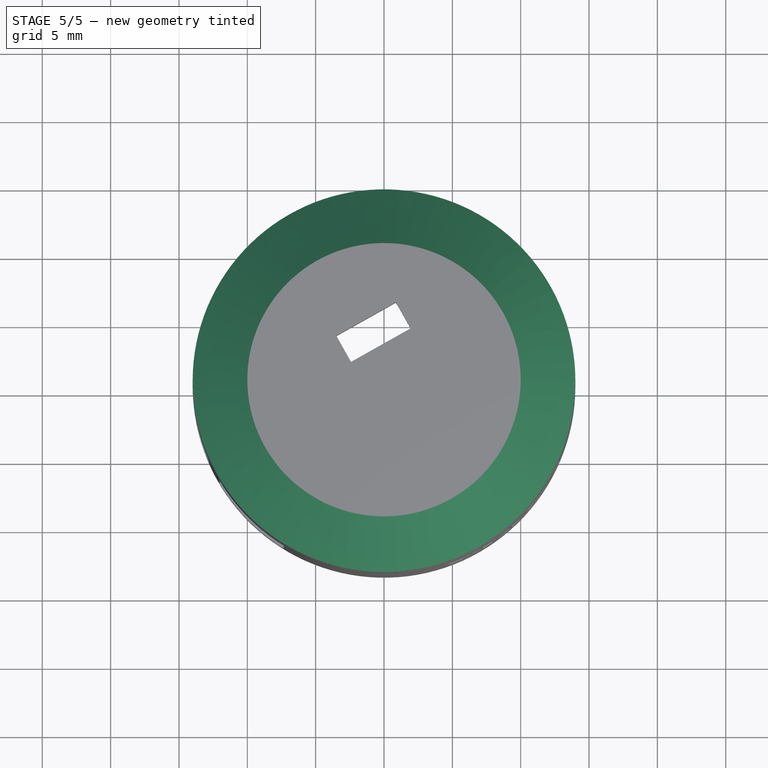
[diagram: stage 5 of 5 — top view after this stage's code; geometry added in this stage tinted green]
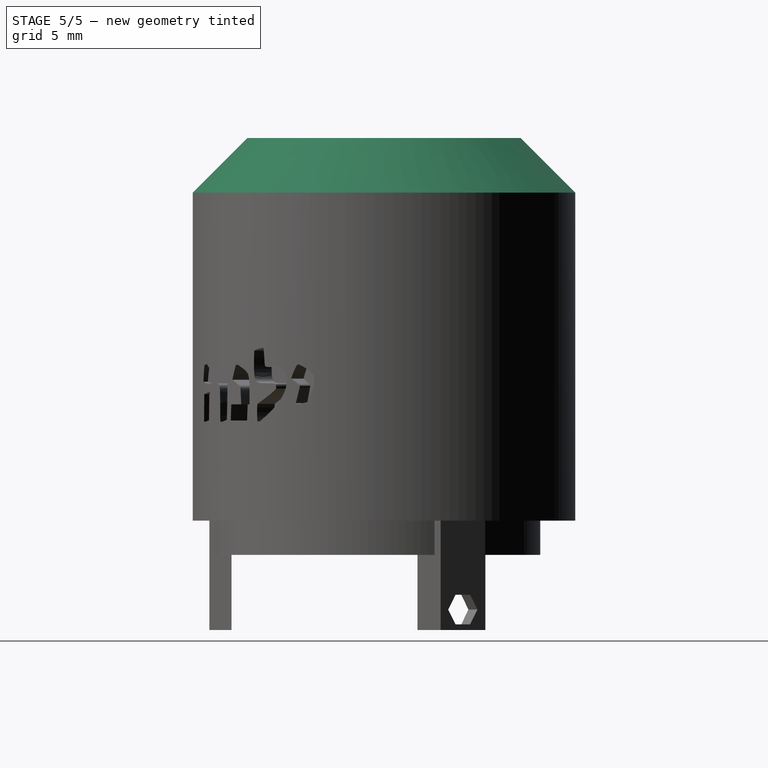
[diagram: stage 5 of 5 — right view after this stage's code; geometry added in this stage tinted green]
FEATURE [Part::Part2DObjectPython] ShapeString  # Draft 2D object (typed FeaturePython)
  FontFile = <userpath>/Desktop/FreeCAD/fonts/Suez One.ttf
  MakeFace = true
  Placement = pos=(-0.091,-18.76,11.33) rot=(0.862856,0.357407,0.357407;1.71777rad)
  Size = 3
  String = הנלי
  Tracking = 0
FEATURE [Sketcher::SketchObject] Sketch035
  FullyConstrained = true
  MapMode = 5
  Placement = pos=(0,0,25) rot=(1,0,0;3.14159rad)
  Support = -> [Pocket023]
  sketch-geometry (4):
    g0: ArcOfCircle CenterX=0 CenterY=0 CenterZ=0 NormalX=0 NormalY=0 NormalZ=1 AngleXU=0 Radius=10.2 StartAngle=2.72472 EndAngle=2.92111
    g1: LineSegment StartX=-9.32647 StartY=4.13 StartZ=0 EndX=8.35569 EndY=-5.85 EndZ=0
    g2: LineSegment StartX=-9.95309 StartY=2.2307 StartZ=0 EndX=7.05353 EndY=-7.36802 EndZ=0
    g3: ArcOfCircle CenterX=0 CenterY=0 CenterZ=0 NormalX=0 NormalY=0 NormalZ=1 AngleXU=0 Radius=10.2 StartAngle=5.47598 EndAngle=5.67238
  constraints (12):
    c: Coincident(g0,g-1)
    c: Radius(g0) = 10.2
    c: DistanceY(g-1,g1) = 4.13
    c: DistanceY(g-1,g1) = -5.85
    c: Distance(g2,g1) = 2
    c: Parallel(g2,g1)
    c: Coincident(g3,g1)
    c: Coincident(g0,g1)
    c: Equal(g0,g3)
    c: Coincident(g0,g2)
    c: Coincident(g3,g2)
    c: Coincident(g0,g3)
FEATURE [PartDesign::Pocket] Pocket024
  BaseFeature = -> Pocket023
  Direction = (0,0,1)
  Length = 1
  Length2 = 5
  Profile = -> Sketch035
  ReferenceAxis = -> Sketch035 [N_Axis]
  Refine = true
  Type = 0
FEATURE [Sketcher::SketchObject] Sketch036
  AttachmentOffset = pos=(0,0,0) rot=(0,1,0;0.523599rad)
  FullyConstrained = true
  MapMode = 5
  Placement = pos=(0,0,0) rot=(0.935113,0.250563,0.250563;1.63783rad)
  Support = -> [XZ_Plane]
  sketch-geometry (4):
    g0: LineSegment StartX=-9.2 StartY=23 StartZ=0 EndX=-7.2 EndY=23 EndZ=0
    g1: LineSegment StartX=-7.2 StartY=23 StartZ=0 EndX=-7.2 EndY=15 EndZ=0
    g2: LineSegment StartX=-7.2 StartY=15 StartZ=0 EndX=-9.2 EndY=15 EndZ=0
    g3: LineSegment StartX=-9.2 StartY=15 StartZ=0 EndX=-9.2 EndY=23 EndZ=0
  constraints (12):
    c: Coincident(g0,g1)
    c: Coincident(g1,g2)
    c: Coincident(g2,g3)
    c: Coincident(g3,g0)
    c: Horizontal(g0)
    c: Horizontal(g2)
    c: Vertical(g1)
    c: Vertical(g3)
    c: DistanceY(g-1,g1) = 15
    c: Distance(g1) = 8
    c: Distance(g0) = 2
    c: DistanceX(g-2,g2) = -9.2
FEATURE [PartDesign::Pocket] Pocket025
  BaseFeature = -> Pocket024
  Direction = (-0.5,0.866025,1e-16)
  Length = 10
  Length2 = 5
  Profile = -> Sketch036
  ReferenceAxis = -> Sketch036 [N_Axis]
  Refine = true
  Type = 1
FEATURE [Sketcher::SketchObject] Sketch037
  FullyConstrained = false
  MapMode = 5
  Placement = pos=(0,0,-2.5) rot=(1,0,0;3.14159rad)
  Support = -> [Pocket025]
  sketch-geometry (4):
    g0: ArcOfCircle CenterX=0 CenterY=0 CenterZ=0 NormalX=0 NormalY=0 NormalZ=1 AngleXU=0 Radius=11 StartAngle=1.93339 EndAngle=3.30948
    g1: ArcOfCircle CenterX=0 CenterY=0 CenterZ=0 NormalX=0 NormalY=0 NormalZ=1 AngleXU=0 Radius=12 StartAngle=1.92498 EndAngle=3.29905
    g2: LineSegment StartX=-11.8516 StartY=-1.88165 StartZ=0 EndX=-10.8453 EndY=-1.83814 EndZ=0
    g3: LineSegment StartX=-4.16191 StartY=11.2552 StartZ=0 EndX=-3.90171 EndY=10.2848 EndZ=0
  constraints (8):
    c: Coincident(g0,g-1)
    c: Radius(g0) = 11
    c: Coincident(g1,g0)
    c: Radius(g1) = 12
    c: Coincident(g1,g2)
    c: Coincident(g1,g3)
    c: Coincident(g2,g0)
    c: Coincident(g3,g0)
FEATURE [PartDesign::Pocket] Pocket026
  BaseFeature = -> Pocket025
  Direction = (0,0,1)
  Length = 7
  Length2 = 5
  Profile = -> Sketch037
  ReferenceAxis = -> Sketch037 [N_Axis]
  Refine = true
  Type = 0
FEATURE [PartDesign::Chamfer] Chamfer
  Angle = 45
  Base = -> Pocket026 [Edge1]
  BaseFeature = -> Pocket026
  ChamferType = 0
  FlipDirection = false
  Refine = true
  Size = 4
  Size2 = 1
  SupportTransform = false
  UseAllEdges = false
FEATURE [Part::Cut] Cut
  Base = -> Body
  Refine = true
  Tool = -> Extrude
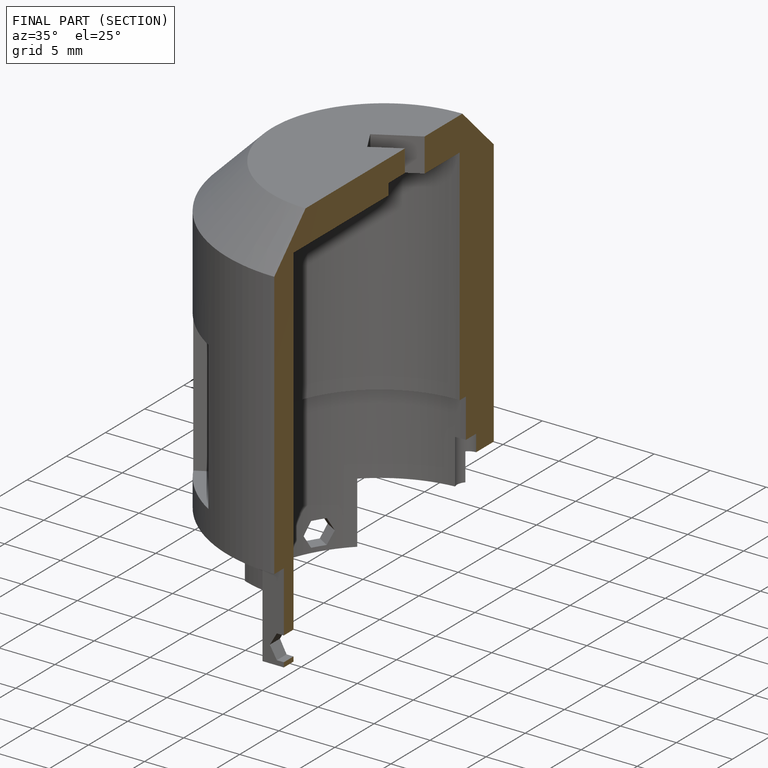
[diagram: finished part — half-section view (interior)]
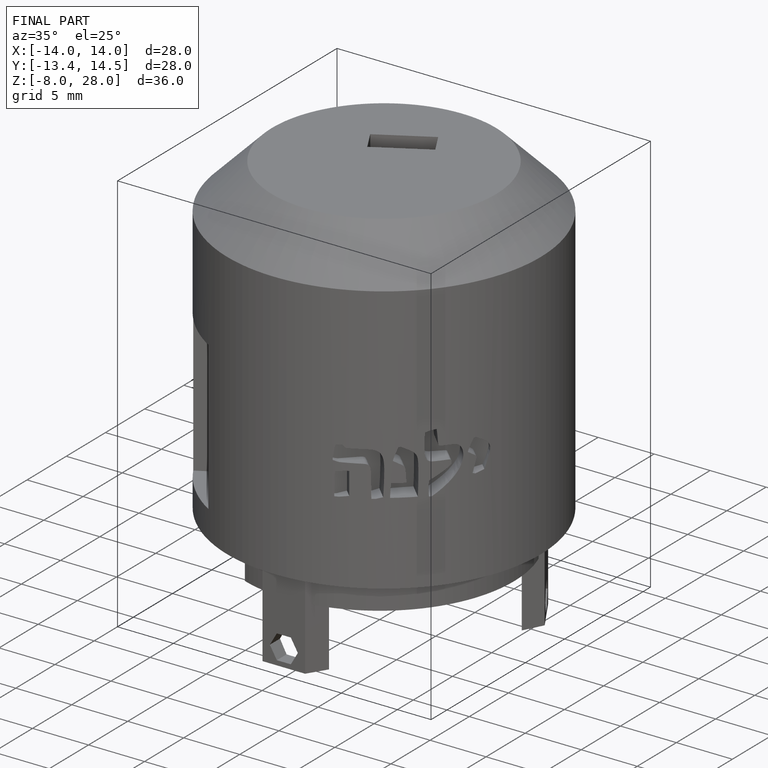
[diagram: finished part — iso view with bounding-box wireframe]
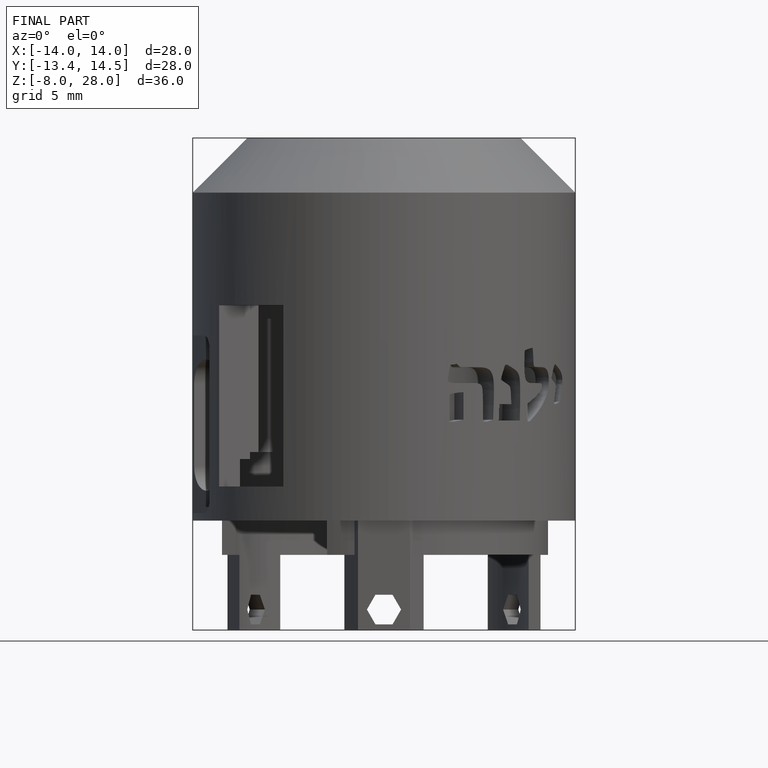
[diagram: finished part — front view with bounding-box wireframe]
